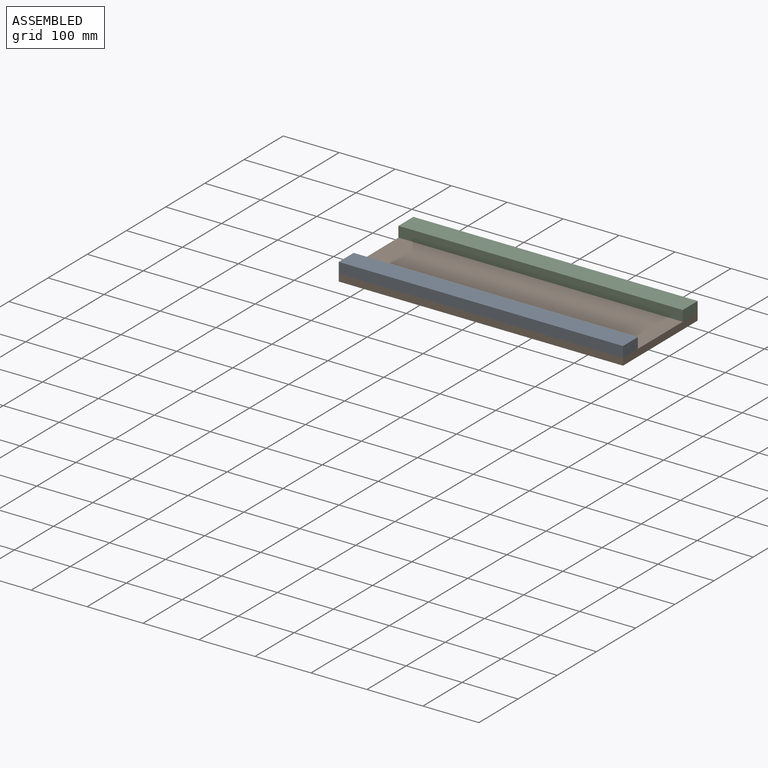
[diagram: assembled view]
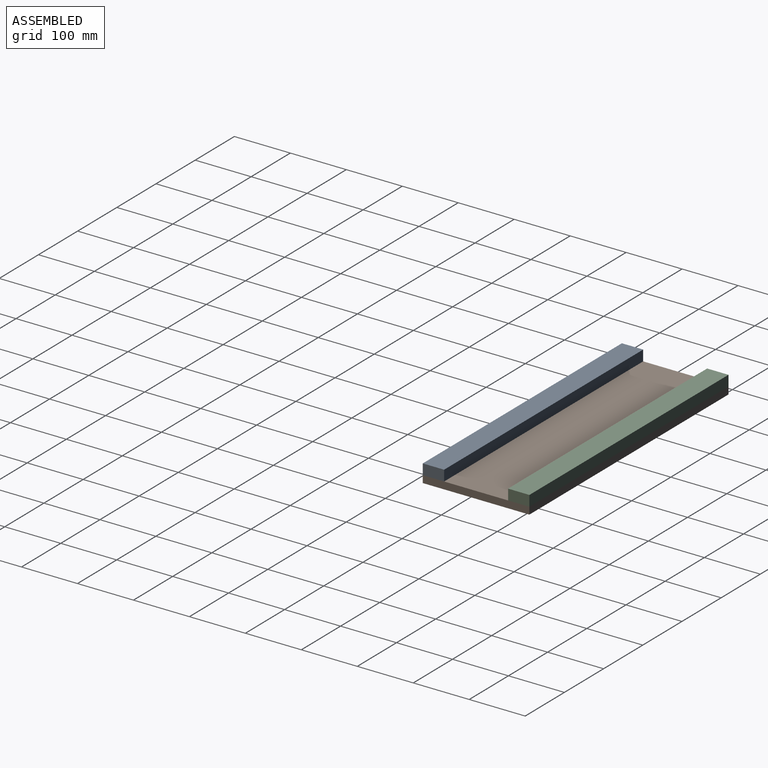
[diagram: assembled view, second angle]
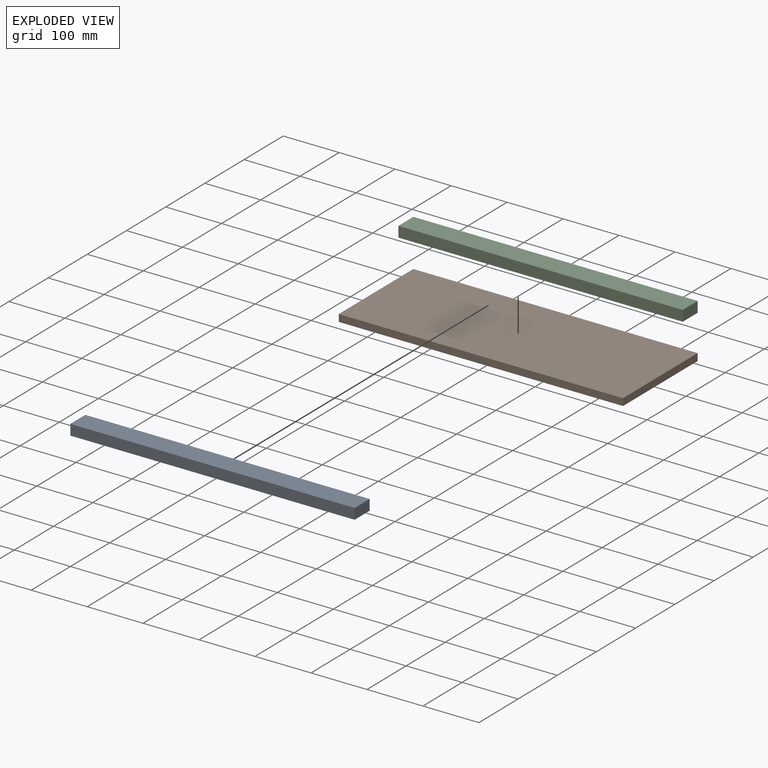
[diagram: exploded view]
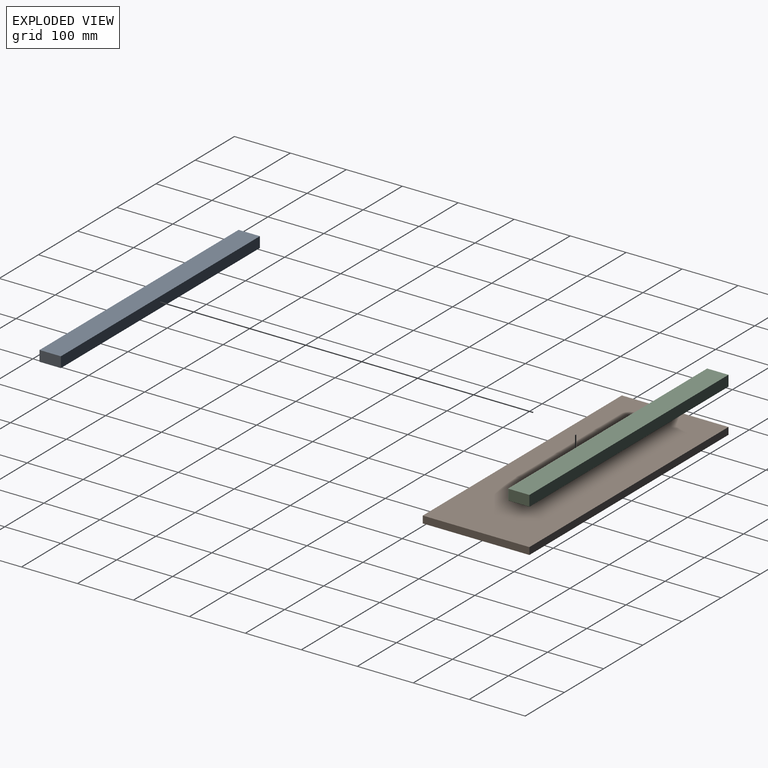
[diagram: exploded view, second angle]
ASSEMBLY  parts=3 mates=6
PART A: 6 faces, bbox 38.1x19.1x508 mm
  f0: plane 508x19.05mm, normal (1,0,0), area 9677.4mm2, adj f1,f3,f4,f5
  f1: plane 508x38.1mm, normal (0,1,0), area 19354.8mm2, adj f0,f2,f4,f5
  f2: plane 508x19.05mm, normal (-1,0,0), area 9677.4mm2, adj f1,f3,f4,f5
  f3: plane 508x38.1mm, normal (0,-1,0), area 19354.8mm2, adj f0,f2,f4,f5
  f4: plane 38.1x19.05mm, normal (0,0,1), area 725.8mm2, adj f0,f1,f2,f3
  f5: plane 38.1x19.05mm, normal (0,0,-1), area 725.8mm2, adj f0,f1,f2,f3
PART B: 6 faces, bbox 508x190.5x12.7 mm
  f0: plane 508x12.7mm, normal (0,-1,0), area 6451.6mm2, adj f1,f3,f4,f5
  f1: plane 190.5x12.7mm, normal (1,0,0), area 2419.3mm2, adj f0,f2,f4,f5
  f2: plane 508x12.7mm, normal (0,1,0), area 6451.6mm2, adj f1,f3,f4,f5
  f3: plane 190.5x12.7mm, normal (-1,0,0), area 2419.3mm2, adj f0,f2,f4,f5
  f4: plane 508x190.5mm, normal (0,0,1), area 96774mm2, adj f0,f1,f2,f3
  f5: plane 508x190.5mm, normal (0,0,-1), area 96774mm2, adj f0,f1,f2,f3
PART C: same geometry as A
PLACE A rot(axis=(0.58,-0.58,-0.58),120deg) t=(254,-76.2,9.53)mm
PLACE B t=(0,0,-12.7)mm
PLACE C rot(axis=(0.58,-0.58,-0.58),120deg) t=(254,76.2,9.52)mm
MATE planar C.f3 <-> B.f4  axis (0,0,-1) through (0,76.2,0)mm
MATE planar A.f0 <-> B.f0  axis (0,-1,0) through (0,-95.25,9.52)mm
MATE planar A.f4 <-> B.f3  axis (-1,0,0) through (-254,-76.2,9.53)mm
MATE planar A.f3 <-> B.f4  axis (0,0,-1) through (0,-76.2,0)mm
MATE planar C.f2 <-> B.f2  axis (0,1,0) through (0,95.25,9.52)mm
MATE planar B.f3 <-> C.f4  axis (-1,0,0) through (-254,0,-12.7)mm
